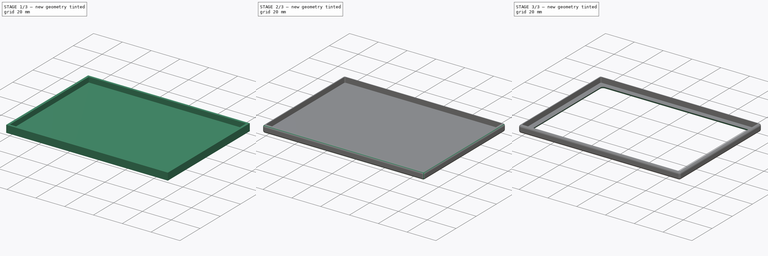
[diagram: build sequence overview — one tinted view per stage of 3, left to right]
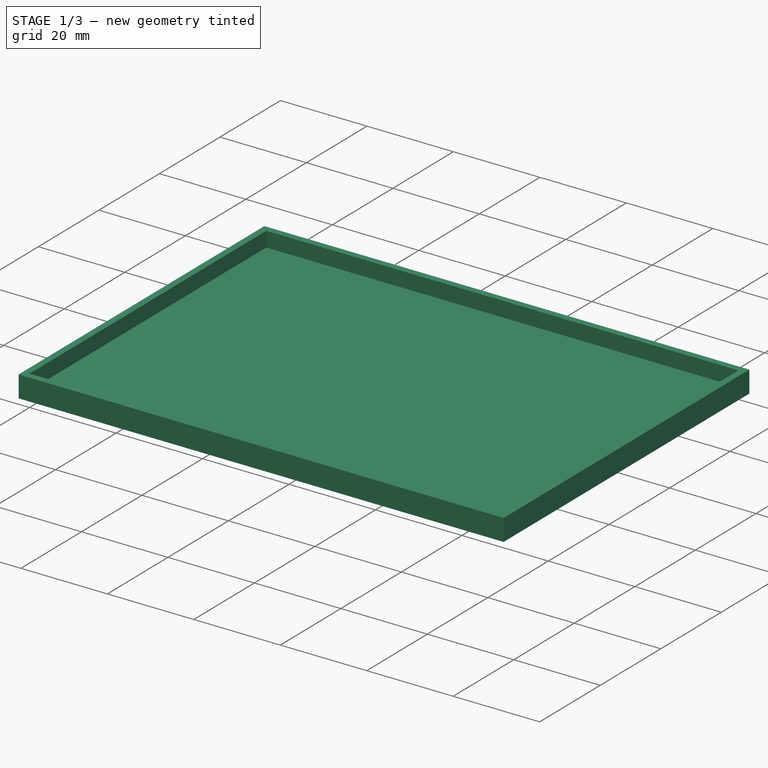
[diagram: stage 1 of 3 — iso view after this stage's code; geometry added in this stage tinted green]
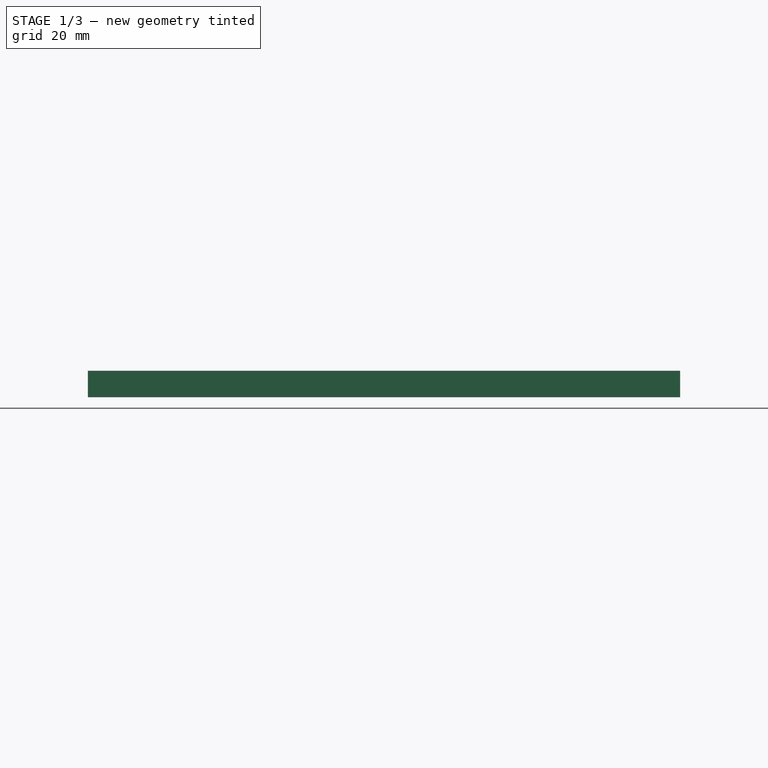
[diagram: stage 1 of 3 — front view after this stage's code; geometry added in this stage tinted green]
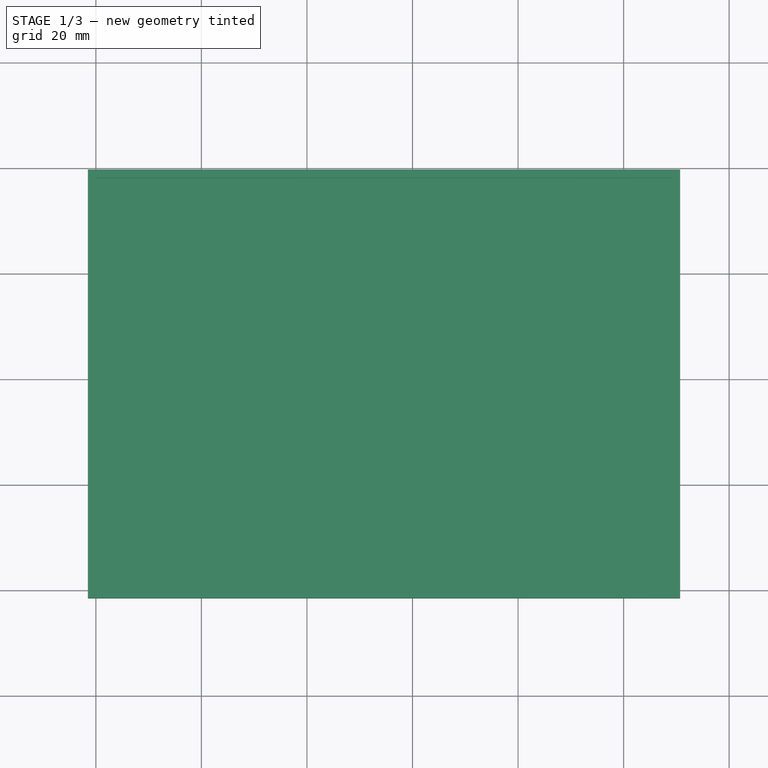
[diagram: stage 1 of 3 — top view after this stage's code; geometry added in this stage tinted green]
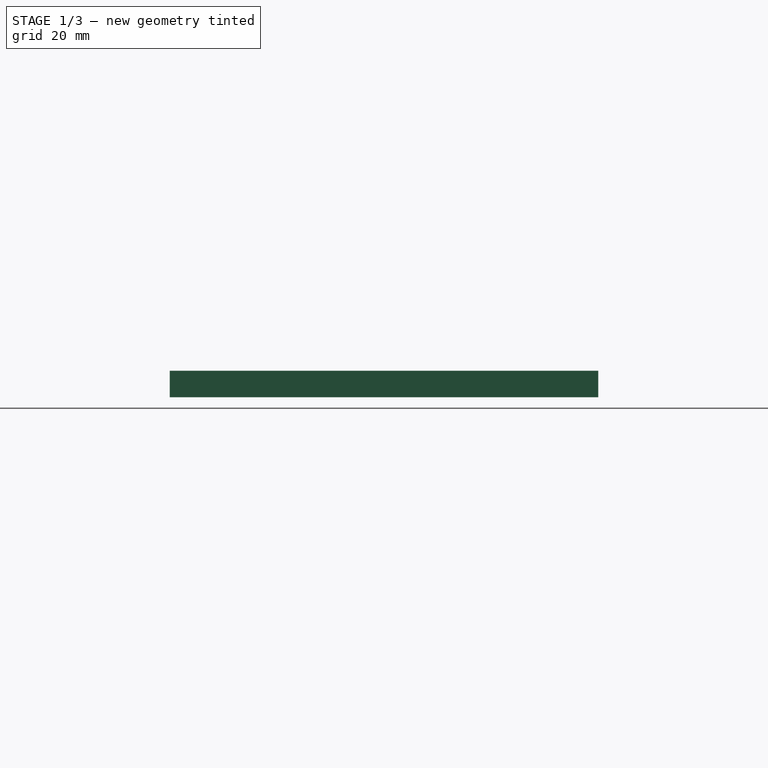
[diagram: stage 1 of 3 — right view after this stage's code; geometry added in this stage tinted green]
FCSTD DOCUMENT  (FreeCAD 0.14R3692 (Git))
Label: icc_top
License: CC-BY 3.0
LicenseURL: http://creativecommons.org/licenses/by/3.0/
objects: Sketcher::SketchObject×3, PartDesign::Fillet×3, PartDesign::Pad×2, PartDesign::Pocket×1
note: 12 computed .brp shape members not serialized (recipe doc carries the construction recipe); baked Part::Feature solids carry a one-line shape summary decoded from their .brp

FEATURE [Sketcher::SketchObject] Sketch
  sketch-geometry (8):
    g0: LineSegment StartX=0 StartY=0 StartZ=0 EndX=109.2 EndY=0 EndZ=0
    g1: LineSegment StartX=109.2 StartY=0 StartZ=0 EndX=109.2 EndY=78.2 EndZ=0
    g2: LineSegment StartX=109.2 StartY=78.2 StartZ=0 EndX=0 EndY=78.2 EndZ=0
    g3: LineSegment StartX=0 StartY=78.2 StartZ=0 EndX=0 EndY=0 EndZ=0
    g4: LineSegment StartX=-1.5 StartY=-1.5 StartZ=0 EndX=110.7 EndY=-1.5 EndZ=0
    g5: LineSegment StartX=110.7 StartY=-1.5 StartZ=0 EndX=110.7 EndY=79.7 EndZ=0
    g6: LineSegment StartX=110.7 StartY=79.7 StartZ=0 EndX=-1.5 EndY=79.7 EndZ=0
    g7: LineSegment StartX=-1.5 StartY=79.7 StartZ=0 EndX=-1.5 EndY=-1.5 EndZ=0
  constraints (23):
    c: Coincident(g0,g1)
    c: Coincident(g1,g2)
    c: Coincident(g2,g3)
    c: Coincident(g3,g0)
    c: Horizontal(g0)
    c: Horizontal(g2)
    c: Vertical(g1)
    c: Vertical(g3)
    c: Coincident(g0,g-1)
    c: DistanceX(g0) = 109.2
    c: DistanceY(g3) = -78.2
    c: Coincident(g4,g5)
    c: Coincident(g5,g6)
    c: Coincident(g6,g7)
    c: Coincident(g7,g4)
    c: Horizontal(g4)
    c: Horizontal(g6)
    c: Vertical(g5)
    c: Vertical(g7)
    c: DistanceX(g2,g6) = -1.5
    c: DistanceY(g2,g6) = 1.5
    c: DistanceX(g1,g5) = 1.5
    c: DistanceY(g4,g0) = 1.5
FEATURE [PartDesign::Pad] Pad
  Length = 5
  Length2 = 100
  Sketch = -> Sketch
  Type = 0
FEATURE [Sketcher::SketchObject] Sketch001
  ExternalGeometry = -> [Pad]
  Placement = pos=(0,0,0) rot=(1,0,0;3.14159rad)
  Support = -> Pad [Face9]
  sketch-geometry (4):
    g0: LineSegment StartX=0 StartY=0 StartZ=0 EndX=109.2 EndY=0 EndZ=0
    g1: LineSegment StartX=109.2 StartY=0 StartZ=0 EndX=109.2 EndY=-78.2 EndZ=0
    g2: LineSegment StartX=109.2 StartY=-78.2 StartZ=0 EndX=0 EndY=-78.2 EndZ=0
    g3: LineSegment StartX=0 StartY=-78.2 StartZ=0 EndX=0 EndY=0 EndZ=0
  constraints (10):
    c: Coincident(g0,g1)
    c: Coincident(g1,g2)
    c: Coincident(g2,g3)
    c: Coincident(g3,g0)
    c: Horizontal(g0)
    c: Horizontal(g2)
    c: Vertical(g1)
    c: Vertical(g3)
    c: Coincident(g0,g-1)
    c: Coincident(g1,g-3)
FEATURE [PartDesign::Pad] Pad001
  Length = 1.5
  Length2 = 100
  Reversed = true
  Sketch = -> Sketch001
  Type = 0
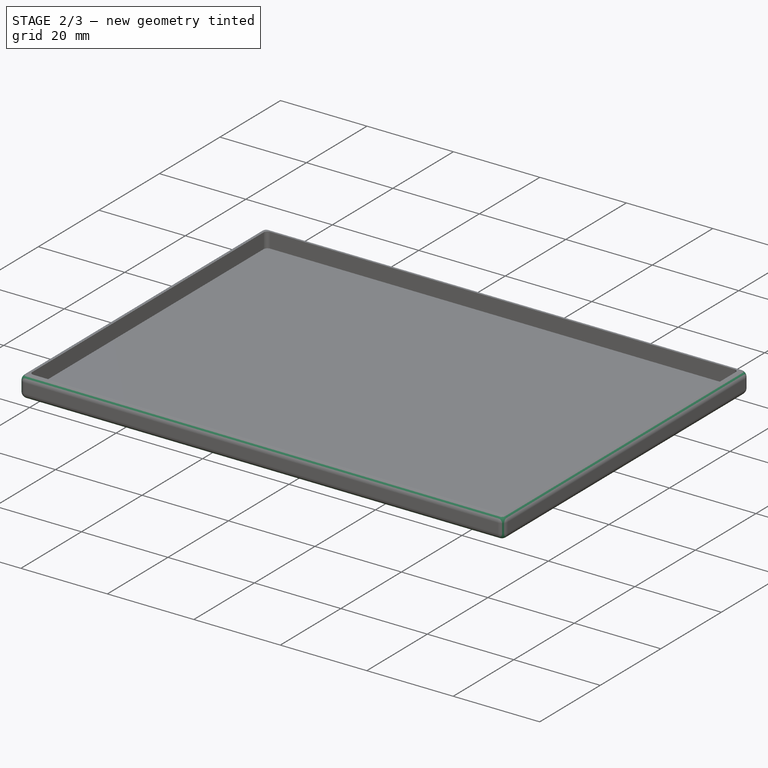
[diagram: stage 2 of 3 — iso view after this stage's code; geometry added in this stage tinted green]
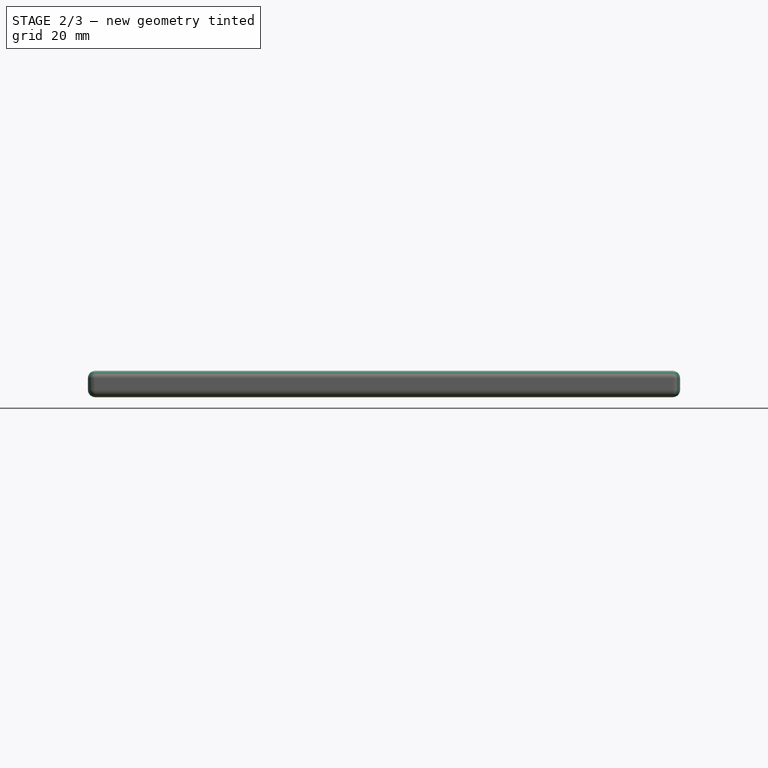
[diagram: stage 2 of 3 — front view after this stage's code; geometry added in this stage tinted green]
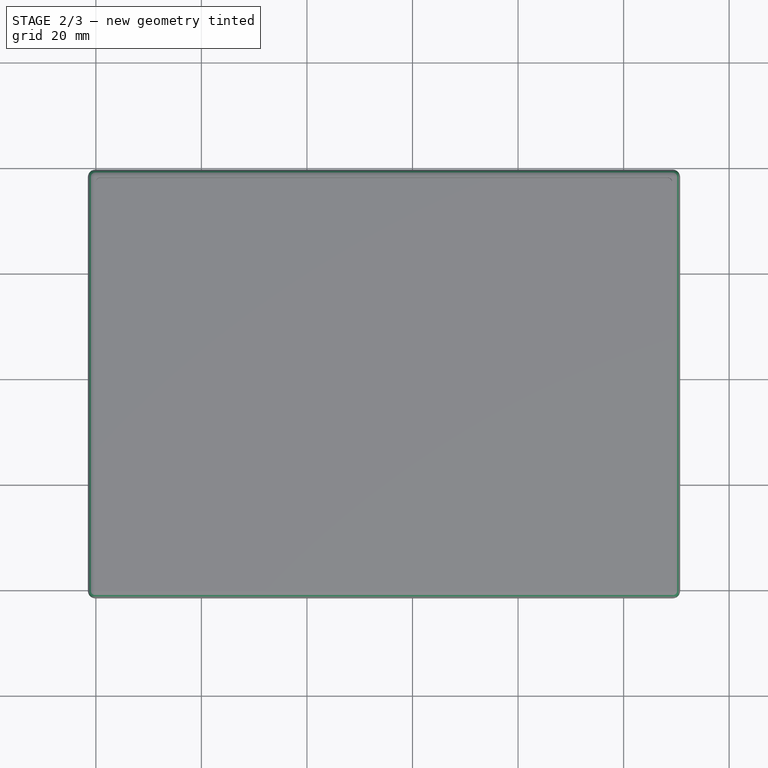
[diagram: stage 2 of 3 — top view after this stage's code; geometry added in this stage tinted green]
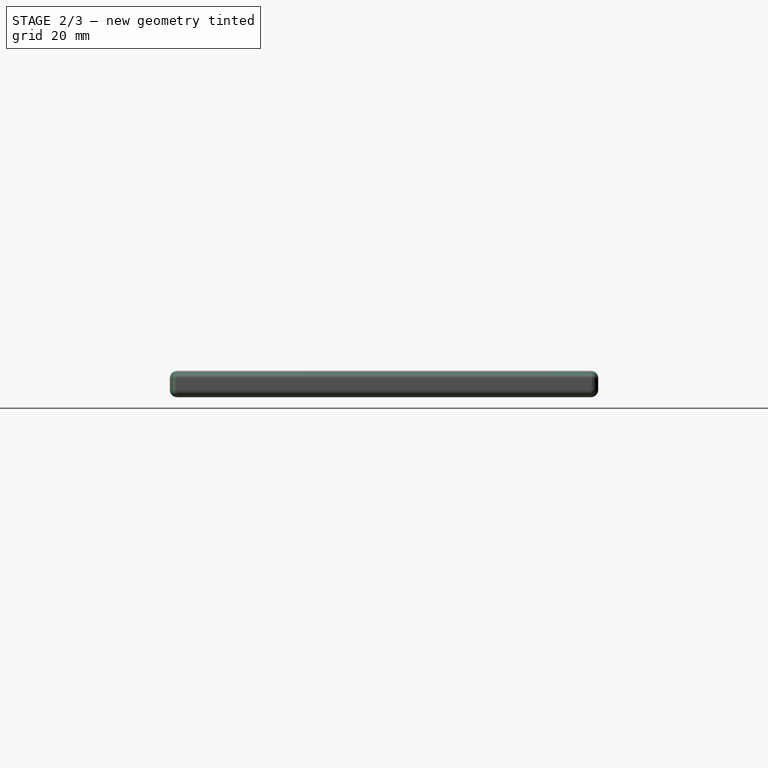
[diagram: stage 2 of 3 — right view after this stage's code; geometry added in this stage tinted green]
FEATURE [PartDesign::Fillet] Fillet
  Base = -> Pad001 [Edge27,Edge23,Edge22,Edge25]
  Radius = 0.9
FEATURE [PartDesign::Fillet] Fillet001
  Base = -> Fillet [Edge29,Edge34,Edge30,Edge31,Edge36,Edge9,Edge12,Edge11,Edge10,Edge32,Edge33,Edge35]
  Radius = 1.4
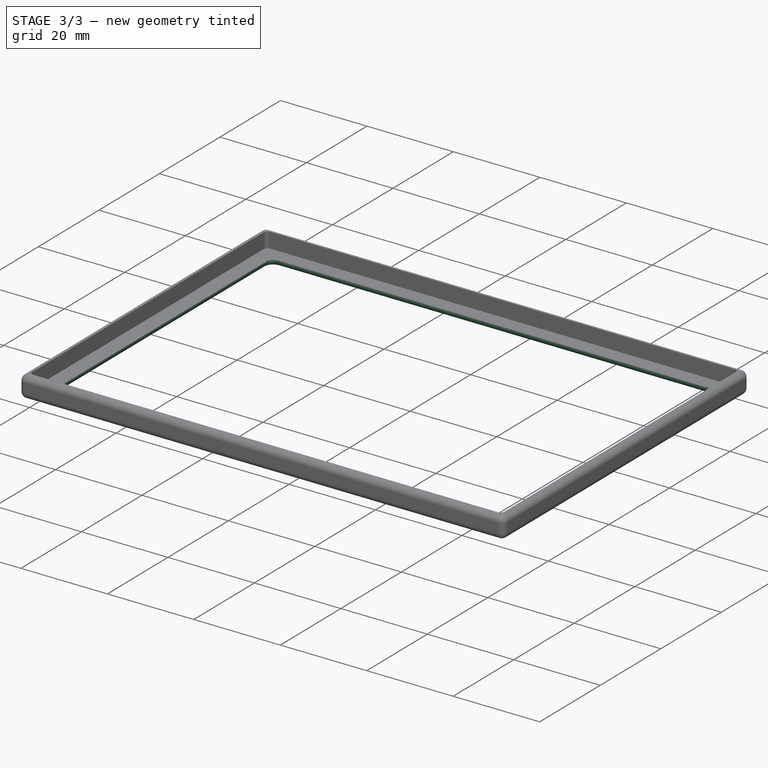
[diagram: stage 3 of 3 — iso view after this stage's code; geometry added in this stage tinted green]
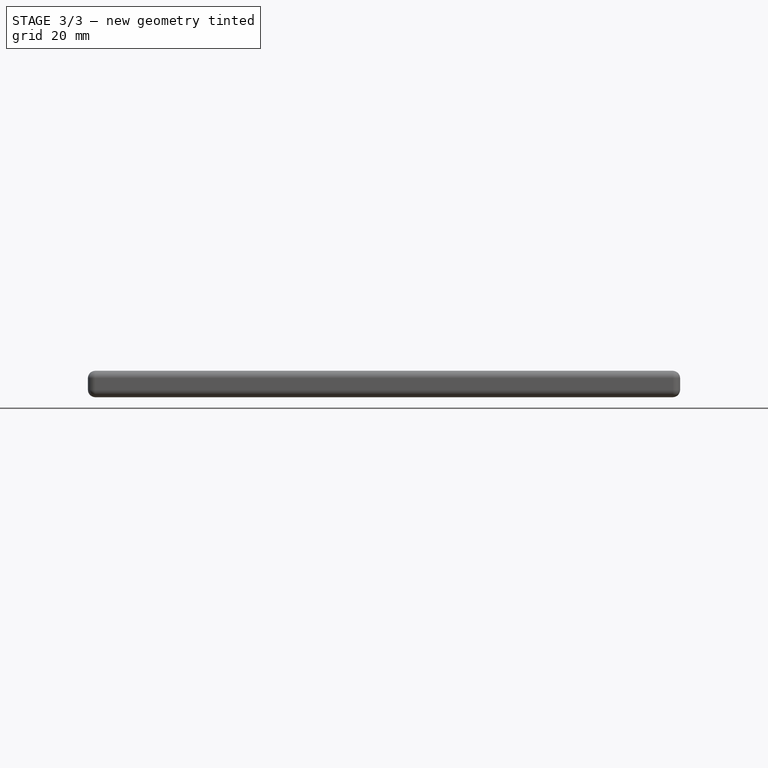
[diagram: stage 3 of 3 — front view after this stage's code; geometry added in this stage tinted green]
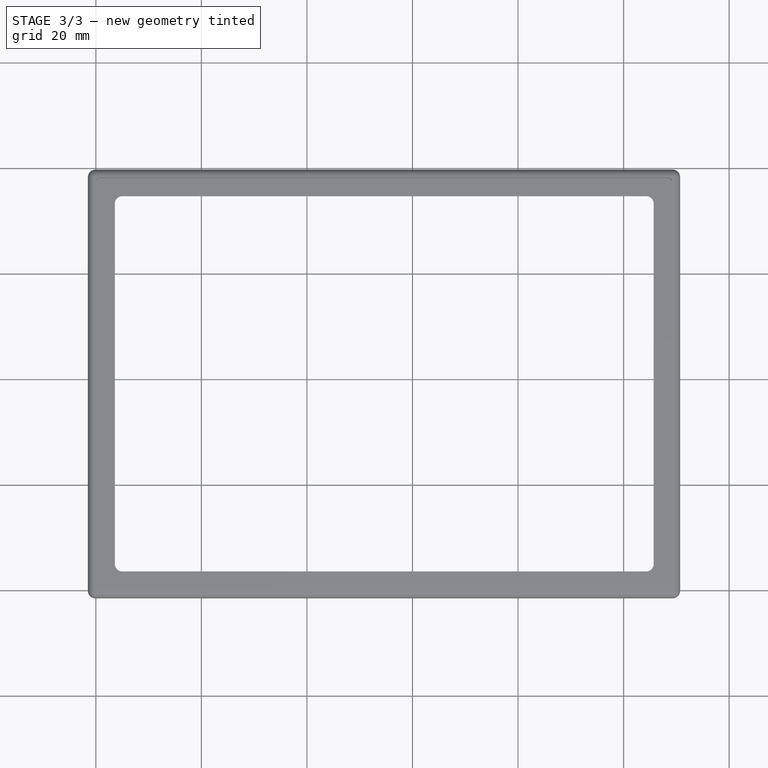
[diagram: stage 3 of 3 — top view after this stage's code; geometry added in this stage tinted green]
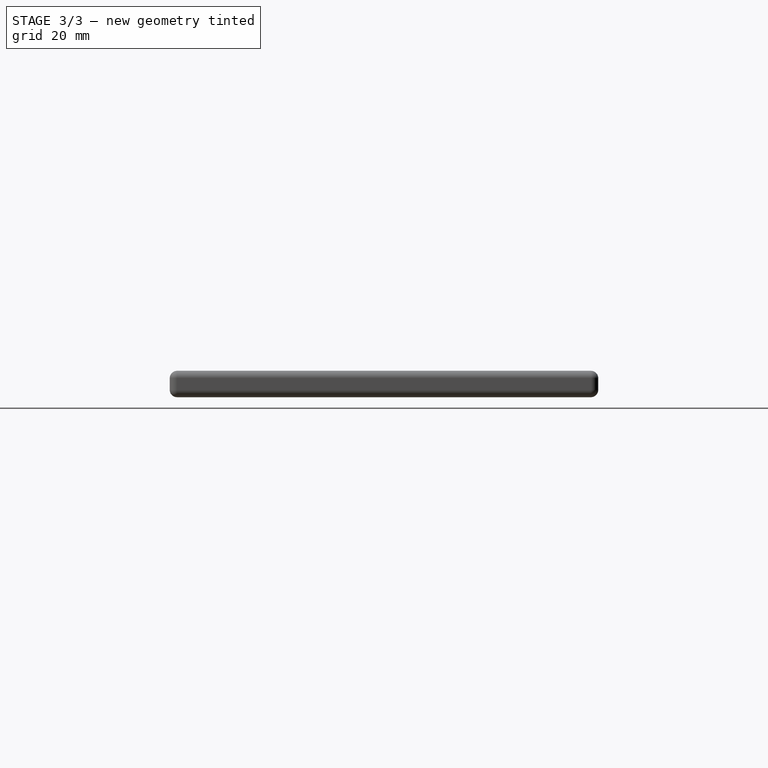
[diagram: stage 3 of 3 — right view after this stage's code; geometry added in this stage tinted green]
FEATURE [Sketcher::SketchObject] Sketch002
  ExternalGeometry = -> [Fillet001]
  Placement = pos=(0,0,0) rot=(1,0,0;3.14159rad)
  Support = -> Fillet001 [Face36]
  sketch-geometry (4):
    g0: LineSegment StartX=3.6 StartY=-3.6 StartZ=0 EndX=105.7 EndY=-3.6 EndZ=0
    g1: LineSegment StartX=105.7 StartY=-3.6 StartZ=0 EndX=105.7 EndY=-74.7 EndZ=0
    g2: LineSegment StartX=105.7 StartY=-74.7 StartZ=0 EndX=3.6 EndY=-74.7 EndZ=0
    g3: LineSegment StartX=3.6 StartY=-74.7 StartZ=0 EndX=3.6 EndY=-3.6 EndZ=0
  constraints (12):
    c: Coincident(g0,g1)
    c: Coincident(g1,g2)
    c: Coincident(g2,g3)
    c: Coincident(g3,g0)
    c: Horizontal(g0)
    c: Horizontal(g2)
    c: Vertical(g1)
    c: Vertical(g3)
    c: DistanceX(g-1,g0) = 3.6
    c: DistanceY(g-1,g0) = -3.6
    c: DistanceX(g0,g-3) = 3.6
    c: DistanceY(g1,g-3) = -3.6
FEATURE [PartDesign::Pocket] Pocket
  Length = 5
  Sketch = -> Sketch002
  Type = 0
FEATURE [PartDesign::Fillet] Fillet002
  Base = -> Pocket [Edge86,Edge88,Edge81,Edge84,Edge87,Edge85,Edge83,Edge82]
  Radius = 1.4
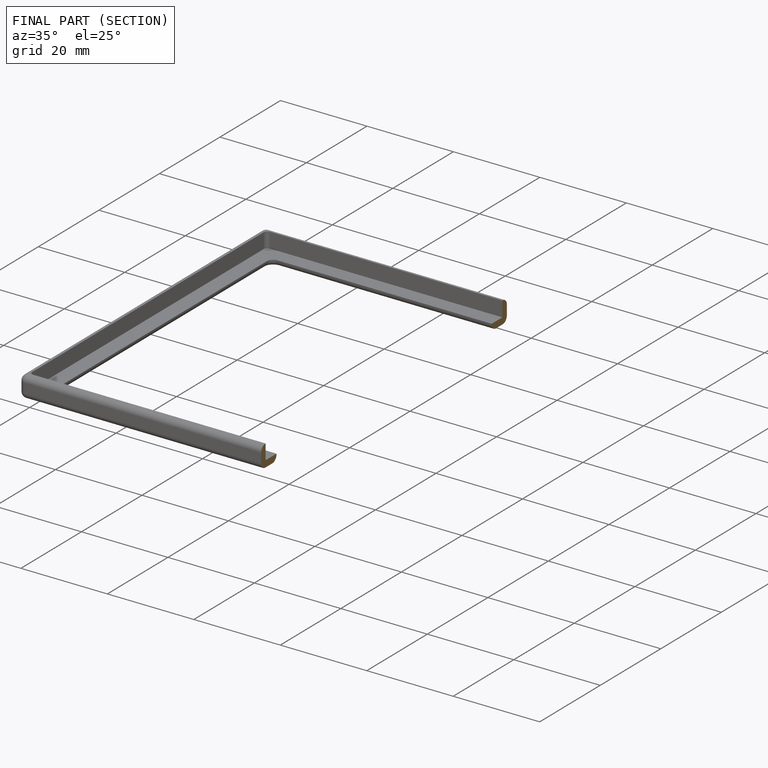
[diagram: finished part — half-section view (interior)]
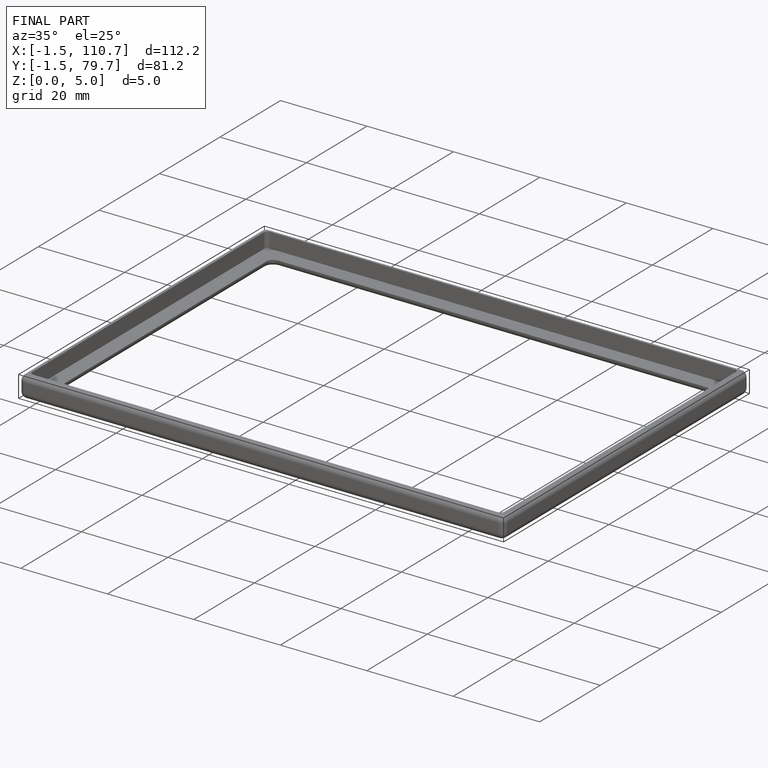
[diagram: finished part — iso view with bounding-box wireframe]
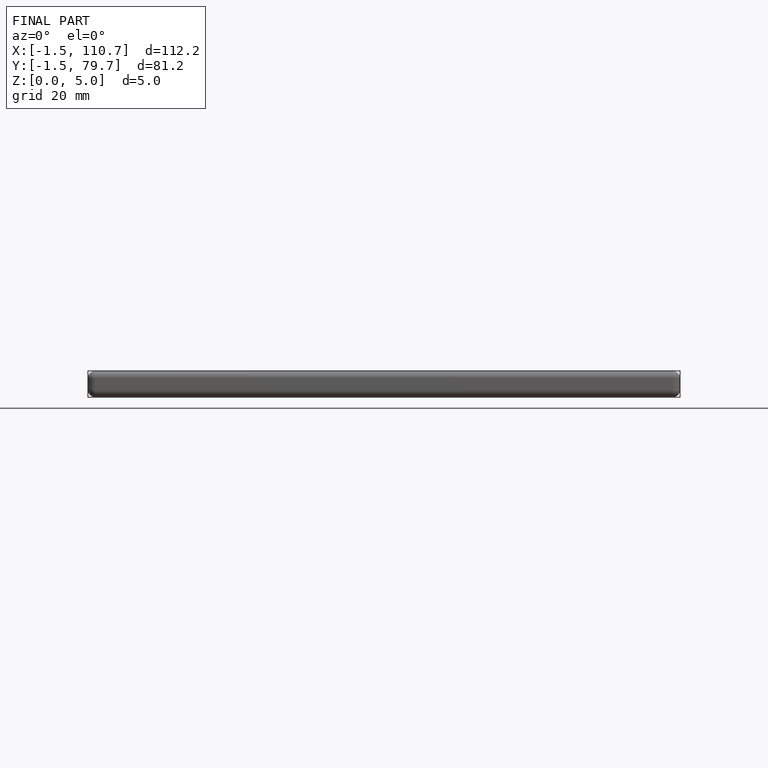
[diagram: finished part — front view with bounding-box wireframe]
